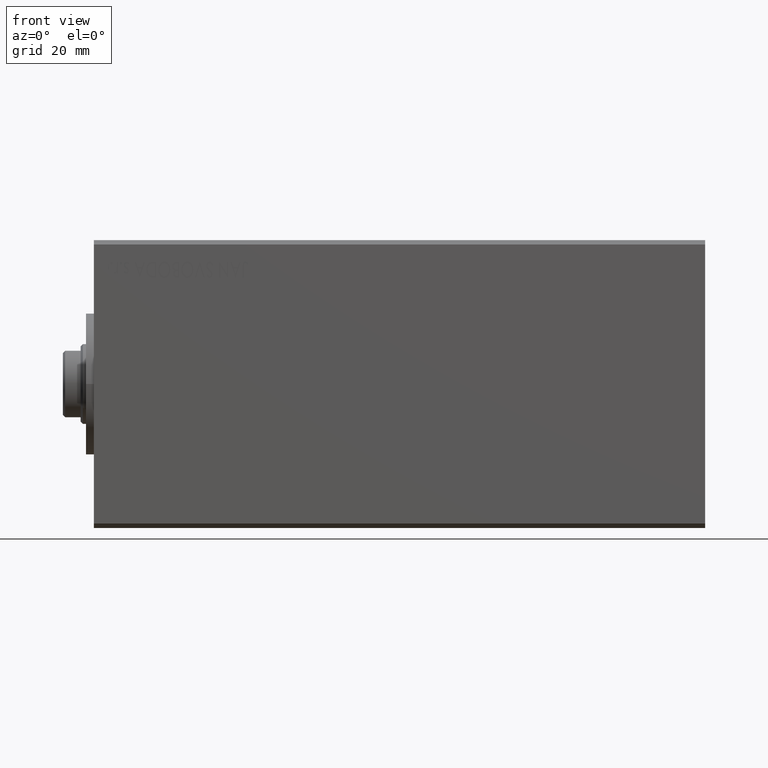
[diagram: clean part render]
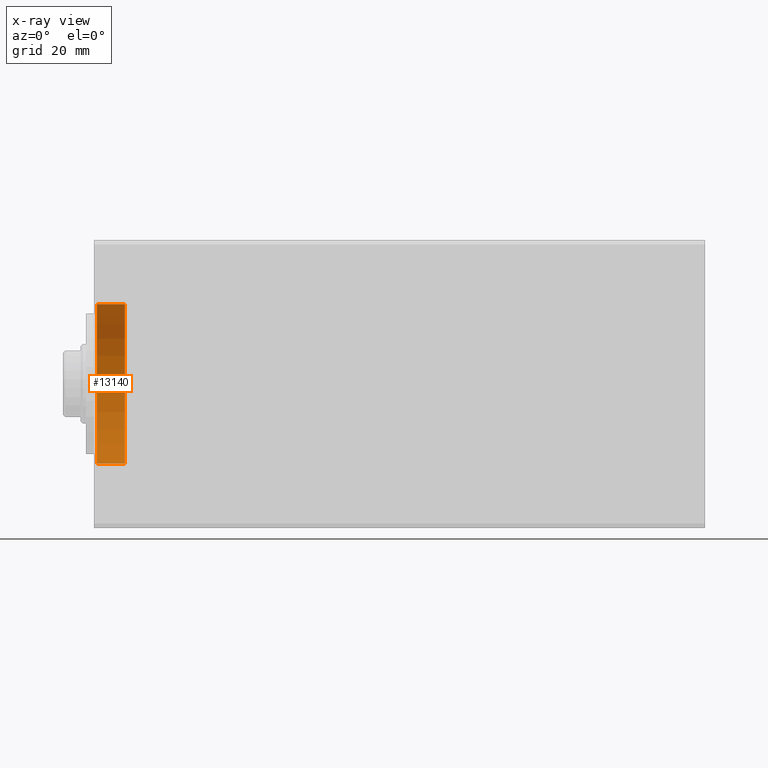
[diagram: x-ray — body ghosted, one internal face saturated and labeled with its STEP entity id]
A machine part, front view, then the same camera in x-ray: the body is ghosted and one INTERNAL B-rep face — a face not visible from any outside direction — is saturated and labeled: STEP entity #13140.
In plain terms, the highlighted cylindrical surface (partial cylindrical patch) has radius 18 mm, axis along (-1, -0, -0).
Its self-contained STEP definition (entity closure, byte-faithful):
#2119 = VERTEX_POINT ( 'NONE', #36893 ) ;
#4649 = CIRCLE ( 'NONE', #15997, 18.00000000000000000 ) ;
#5411 = ORIENTED_EDGE ( 'NONE', *, *, #22131, .T. ) ;
#6363 = CIRCLE ( 'NONE', #28429, 18.00000000000000000 ) ;
#8269 = DIRECTION ( 'NONE',  ( 0.000000000000000000, 0.000000000000000000, 1.000000000000000000 ) ) ;
#8346 = CARTESIAN_POINT ( 'NONE',  ( 7.000000000000000000, 2.204364238465235428E-15, -18.00000000000000000 ) ) ;
#9255 = VECTOR ( 'NONE', #39477, 1000.000000000000000 ) ;
#11071 = CARTESIAN_POINT ( 'NONE',  ( 7.000000000000000000, 2.204364238465235428E-15, -18.00000000000000000 ) ) ;
#12114 = EDGE_LOOP ( 'NONE', ( #34055, #43608, #5411, #28106 ) ) ;
#12244 = LINE ( 'NONE', #16008, #9255 ) ;
#13140 = ADVANCED_FACE ( 'NONE', ( #13389 ), #31002, .F. ) ;
#13389 = FACE_OUTER_BOUND ( 'NONE', #12114, .T. ) ;
#15997 = AXIS2_PLACEMENT_3D ( 'NONE', #23062, #36909, #19714 ) ;
#16008 = CARTESIAN_POINT ( 'NONE',  ( 7.000000000000000000, 0.000000000000000000, 18.00000000000000000 ) ) ;
#19215 = EDGE_CURVE ( 'NONE', #39182, #33993, #6363, .T. ) ;
#19714 = DIRECTION ( 'NONE',  ( 0.000000000000000000, 0.000000000000000000, -1.000000000000000000 ) ) ;
#21942 = DIRECTION ( 'NONE',  ( -1.000000000000000000, -0.000000000000000000, -0.000000000000000000 ) ) ;
#22131 = EDGE_CURVE ( 'NONE', #39182, #25055, #12244, .T. ) ;
#22303 = CARTESIAN_POINT ( 'NONE',  ( 7.000000000000000000, 0.000000000000000000, 0.000000000000000000 ) ) ;
#23062 = CARTESIAN_POINT ( 'NONE',  ( 0.7000000000000027311, 0.000000000000000000, 0.000000000000000000 ) ) ;
#23213 = DIRECTION ( 'NONE',  ( -1.000000000000000000, -0.000000000000000000, -0.000000000000000000 ) ) ;
#23421 = EDGE_CURVE ( 'NONE', #33993, #2119, #38915, .T. ) ;
#25055 = VERTEX_POINT ( 'NONE', #40225 ) ;
#27218 = CARTESIAN_POINT ( 'NONE',  ( 7.000000000000000000, 0.000000000000000000, 0.000000000000000000 ) ) ;
#27553 = AXIS2_PLACEMENT_3D ( 'NONE', #27218, #23213, #36843 ) ;
#28106 = ORIENTED_EDGE ( 'NONE', *, *, #29092, .T. ) ;
#28429 = AXIS2_PLACEMENT_3D ( 'NONE', #22303, #43060, #8269 ) ;
#29092 = EDGE_CURVE ( 'NONE', #25055, #2119, #4649, .T. ) ;
#31002 = CYLINDRICAL_SURFACE ( 'NONE', #27553, 18.00000000000000000 ) ;
#32003 = VECTOR ( 'NONE', #21942, 1000.000000000000000 ) ;
#33993 = VERTEX_POINT ( 'NONE', #11071 ) ;
#34055 = ORIENTED_EDGE ( 'NONE', *, *, #23421, .F. ) ;
#34944 = CARTESIAN_POINT ( 'NONE',  ( 7.000000000000000000, 0.000000000000000000, 18.00000000000000000 ) ) ;
#36843 = DIRECTION ( 'NONE',  ( 0.000000000000000000, 0.000000000000000000, 1.000000000000000000 ) ) ;
#36893 = CARTESIAN_POINT ( 'NONE',  ( 0.7000000000000027311, 2.204364238465235428E-15, -18.00000000000000000 ) ) ;
#36909 = DIRECTION ( 'NONE',  ( -1.000000000000000000, 0.000000000000000000, 0.000000000000000000 ) ) ;
#38915 = LINE ( 'NONE', #8346, #32003 ) ;
#39182 = VERTEX_POINT ( 'NONE', #34944 ) ;
#39477 = DIRECTION ( 'NONE',  ( -1.000000000000000000, -0.000000000000000000, -0.000000000000000000 ) ) ;
#40225 = CARTESIAN_POINT ( 'NONE',  ( 0.7000000000000027311, 0.000000000000000000, 18.00000000000000000 ) ) ;
#43060 = DIRECTION ( 'NONE',  ( -1.000000000000000000, 0.000000000000000000, 0.000000000000000000 ) ) ;
#43608 = ORIENTED_EDGE ( 'NONE', *, *, #19215, .F. ) ;